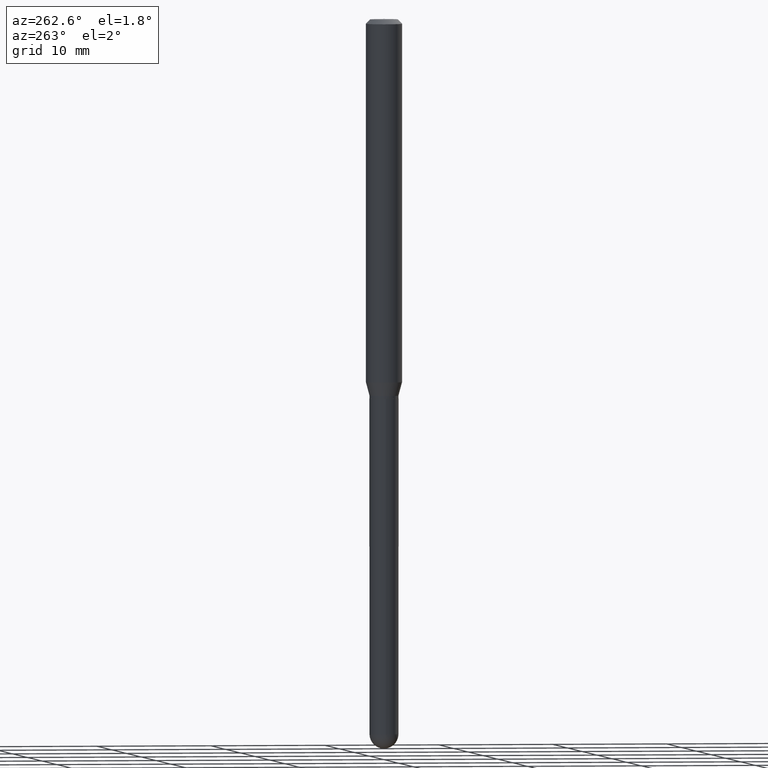
[diagram: clean part render]
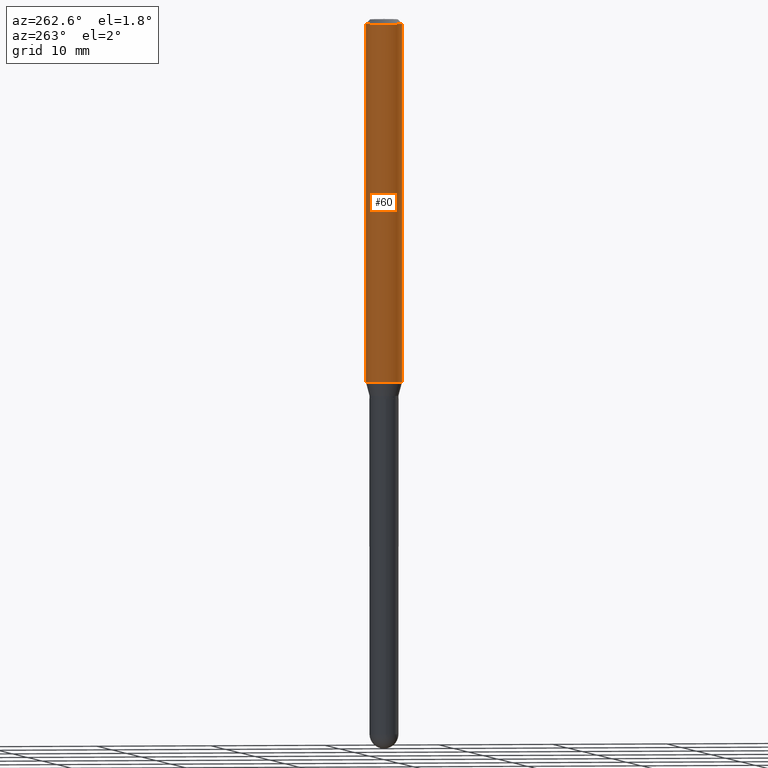
[diagram: same view with one face highlighted and labeled with its STEP entity id]
A machine part, auxiliary view. The second image highlights one B-rep face of the part: STEP entity #60.
In plain terms, the highlighted cylindrical surface (edge-blend (fillet) strip) has radius 1.5875 mm, axis along (-0, 0, 1).
Its self-contained STEP definition (entity closure, byte-faithful):
#41 = VERTEX_POINT ( 'NONE', #85 ) ;
#60 = ADVANCED_FACE ( 'NONE', ( #92 ), #411, .T. ) ;
#76 = EDGE_CURVE ( 'NONE', #41, #107, #294, .T. ) ;
#85 = CARTESIAN_POINT ( 'NONE',  ( 4.440892098500930859E-16, 0.06249999999999567707, -1.243349364905388388 ) ) ;
#92 = FACE_OUTER_BOUND ( 'NONE', #385, .T. ) ;
#96 = VECTOR ( 'NONE', #152, 39.37007874015748143 ) ;
#99 = CARTESIAN_POINT ( 'NONE',  ( -4.364351673553610517E-16, -0.06250000000000431599, -1.243349364905387722 ) ) ;
#104 = CARTESIAN_POINT ( 'NONE',  ( -4.364351673553916201E-16, -0.06250000000000000000, 2.182109485895132762E-16 ) ) ;
#107 = VERTEX_POINT ( 'NONE', #247 ) ;
#110 = CARTESIAN_POINT ( 'NONE',  ( 3.668314407453261236E-31, -5.237062766148322204E-17, -0.01500000000000000812 ) ) ;
#119 = CARTESIAN_POINT ( 'NONE',  ( 3.040664259186862585E-29, -4.340999109506777634E-15, -1.243349364905387944 ) ) ;
#124 = VECTOR ( 'NONE', #212, 39.37007874015748143 ) ;
#152 = DIRECTION ( 'NONE',  ( -2.445542938302172429E-29, 3.491375177432212419E-15, 1.000000000000000000 ) ) ;
#157 = EDGE_CURVE ( 'NONE', #160, #402, #183, .T. ) ;
#160 = VERTEX_POINT ( 'NONE', #99 ) ;
#183 = LINE ( 'NONE', #104, #96 ) ;
#212 = DIRECTION ( 'NONE',  ( -2.445542938302172429E-29, 3.491375177432212419E-15, 1.000000000000000000 ) ) ;
#224 = AXIS2_PLACEMENT_3D ( 'NONE', #110, #282, #321 ) ;
#233 = DIRECTION ( 'NONE',  ( -2.445542938302172429E-29, 3.491375177432212419E-15, 1.000000000000000000 ) ) ;
#247 = CARTESIAN_POINT ( 'NONE',  ( 4.440892098500930859E-16, 0.06249999999999993755, -0.01500000000000022669 ) ) ;
#259 = DIRECTION ( 'NONE',  ( -6.982962677686265922E-15, -1.000000000000000000, 3.491375177432212419E-15 ) ) ;
#266 = CIRCLE ( 'NONE', #452, 0.06250000000000000000 ) ;
#282 = DIRECTION ( 'NONE',  ( -2.445542938302172429E-29, 3.491375177432212419E-15, 1.000000000000000000 ) ) ;
#294 = LINE ( 'NONE', #300, #124 ) ;
#298 = EDGE_CURVE ( 'NONE', #41, #160, #266, .T. ) ;
#300 = CARTESIAN_POINT ( 'NONE',  ( 4.440892098500625669E-16, 0.06250000000000000000, -2.182109485895132762E-16 ) ) ;
#321 = DIRECTION ( 'NONE',  ( -6.982962677686265922E-15, -1.000000000000000000, 3.483106191921935554E-15 ) ) ;
#353 = AXIS2_PLACEMENT_3D ( 'NONE', #447, #481, #259 ) ;
#354 = DIRECTION ( 'NONE',  ( -6.982962677686265922E-15, -1.000000000000000000, 4.370956789862821150E-15 ) ) ;
#359 = CARTESIAN_POINT ( 'NONE',  ( -4.364351673553912750E-16, -0.06250000000000005551, -0.01499999999999979128 ) ) ;
#385 = EDGE_LOOP ( 'NONE', ( #456, #400, #460, #407 ) ) ;
#387 = CIRCLE ( 'NONE', #224, 0.06250000000000000000 ) ;
#389 = EDGE_CURVE ( 'NONE', #107, #402, #387, .T. ) ;
#400 = ORIENTED_EDGE ( 'NONE', *, *, #298, .T. ) ;
#402 = VERTEX_POINT ( 'NONE', #359 ) ;
#407 = ORIENTED_EDGE ( 'NONE', *, *, #389, .F. ) ;
#411 = CYLINDRICAL_SURFACE ( 'NONE', #353, 0.06250000000000000000 ) ;
#447 = CARTESIAN_POINT ( 'NONE',  ( 0.000000000000000000, 0.000000000000000000, 0.000000000000000000 ) ) ;
#452 = AXIS2_PLACEMENT_3D ( 'NONE', #119, #233, #354 ) ;
#456 = ORIENTED_EDGE ( 'NONE', *, *, #76, .F. ) ;
#460 = ORIENTED_EDGE ( 'NONE', *, *, #157, .T. ) ;
#481 = DIRECTION ( 'NONE',  ( -2.445542938302172429E-29, 3.491375177432212419E-15, 1.000000000000000000 ) ) ;